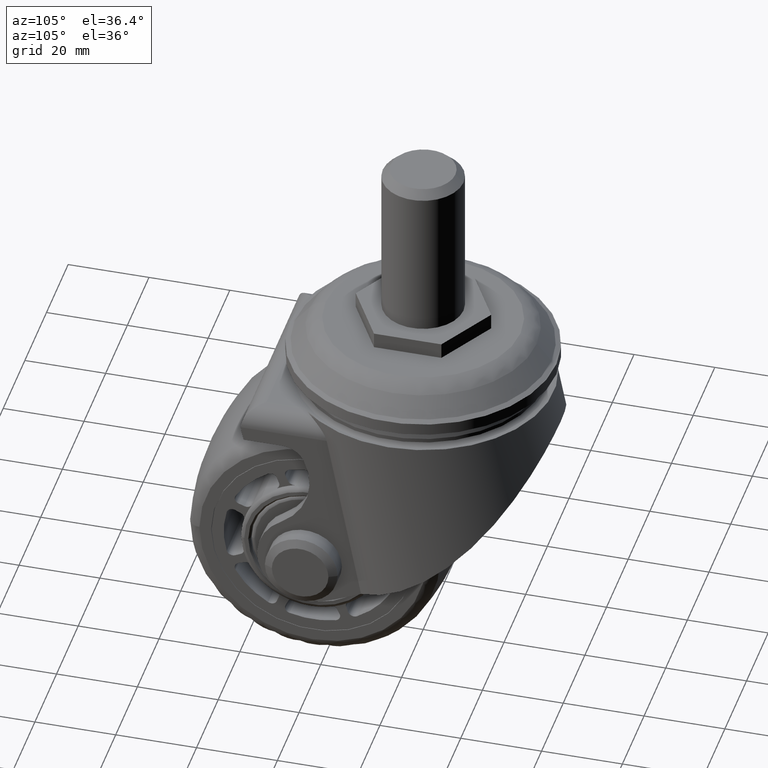
[diagram: clean part render]
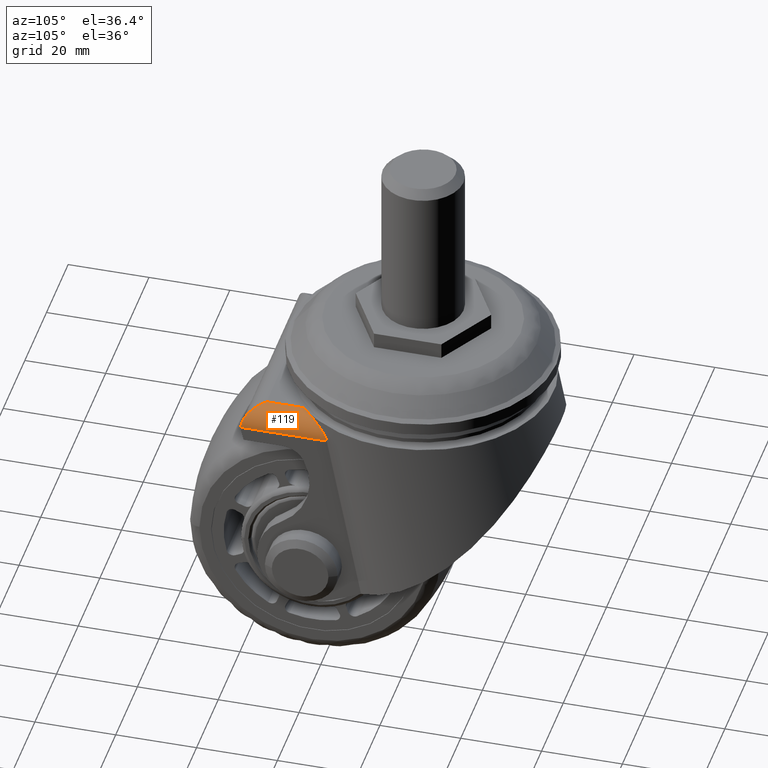
[diagram: same view with one face highlighted and labeled with its STEP entity id]
A machine part, auxiliary view. The second image highlights one B-rep face of the part: STEP entity #119.
In plain terms, the highlighted cylindrical surface (edge-blend (fillet) strip) has radius 5 mm, axis along (0, -1, 0).
Its self-contained STEP definition (entity closure, byte-faithful):
#119=ADVANCED_FACE('',(#394),#393,.T.);
#393=CYLINDRICAL_SURFACE('',#2494,5.00000000000E+00);
#394=FACE_OUTER_BOUND('',#2495,.T.);
#2491=CARTESIAN_POINT('',(2.15000000000E+01,-2.10000000000E+01,4.20000000000E+01));
#2492=DIRECTION('',(-0.00000000000E+00,-0.00000000000E+00,1.00000000000E+00));
#2493=DIRECTION('',(1.00000000000E+00,-0.00000000000E+00,-0.00000000000E+00));
#2494=AXIS2_PLACEMENT_3D('',#2491,#2492,#2493);
#2495=EDGE_LOOP('',(#4289,#4290,#4291,#4292));
#4289=ORIENTED_EDGE('',*,*,#5357,.F.);
#4290=ORIENTED_EDGE('',*,*,#5361,.T.);
#4291=ORIENTED_EDGE('',*,*,#5362,.T.);
#4292=ORIENTED_EDGE('',*,*,#5363,.T.);
#5357=EDGE_CURVE('',#6096,#6103,#6104,.T.);
#5361=EDGE_CURVE('',#6096,#6130,#6131,.T.);
#5362=EDGE_CURVE('',#6130,#6137,#6138,.T.);
#5363=EDGE_CURVE('',#6137,#6103,#6144,.T.);
#6096=VERTEX_POINT('',#9774);
#6103=VERTEX_POINT('',#9778);
#6104=LINE('',#9779,#9780);
#6130=VERTEX_POINT('',#9801);
#6131=(BOUNDED_CURVE() B_SPLINE_CURVE(2,(#9802,#9803,#9804),.UNSPECIFIED.,.F.,.F.) B_SPLINE_CURVE_WITH_KNOTS((3,3),(1.57079632679E+00,3.14159265359E+00),.UNSPECIFIED.) CURVE() GEOMETRIC_REPRESENTATION_ITEM() RATIONAL_B_SPLINE_CURVE((1.00000000000E+00,7.07106781187E-01,1.00000000000E+00)) REPRESENTATION_ITEM('') );
#6137=VERTEX_POINT('',#9805);
#6138=LINE('',#9806,#9807);
#6144=(BOUNDED_CURVE() B_SPLINE_CURVE(3,(#9809,#9810,#9811,#9812,#9813,#9814,#9815,#9816,#9817,#9818,#9819,#9820,#9821,#9822,#9823,#9824,#9825,#9826),.UNSPECIFIED.,.F.,.F.) B_SPLINE_CURVE_WITH_KNOTS((4,2,2,2,2,2,2,2,4),(0.00000000000E+00,6.64784937408E-04,1.32956987482E-03,2.65913974963E-03,3.98870962445E-03,5.31827949927E-03,6.64784937408E-03,7.97741924890E-03,1.06365589985E-02),.UNSPECIFIED.) CURVE() GEOMETRIC_REPRESENTATION_ITEM() RATIONAL_B_SPLINE_CURVE((1.00000000000E+00,1.00000000000E+00,1.00000000000E+00,1.00000000000E+00,1.00000000000E+00,1.00000000000E+00,1.00000000000E+00,1.00000000000E+00,1.00000000000E+00,1.00000000000E+00,1.00000000000E+00,1.00000000000E+00,1.00000000000E+00,1.00000000000E+00,1.00000000000E+00,1.00000000000E+00,1.00000000000E+00,1.00000000000E+00)) REPRESENTATION_ITEM('') );
#9774=CARTESIAN_POINT('',(2.15000000000E+01,-1.60000000000E+01,3.30000000000E+01));
#9778=CARTESIAN_POINT('',(2.15000000000E+01,-1.60000000000E+01,2.37458203658E+01));
#9779=CARTESIAN_POINT('',(2.15000000000E+01,-1.60000000000E+01,3.30000000000E+01));
#9780=VECTOR('',#9781,9.25417963419E+00);
#9781=DIRECTION('',(0.00000000000E+00,0.00000000000E+00,-1.00000000000E+00));
#9801=CARTESIAN_POINT('',(2.65000000000E+01,-2.10000000000E+01,3.80000000000E+01));
#9802=CARTESIAN_POINT('',(2.15000000000E+01,-1.60000000000E+01,3.30000000000E+01));
#9803=CARTESIAN_POINT('',(2.65000000000E+01,-1.60000000000E+01,3.80000000000E+01));
#9804=CARTESIAN_POINT('',(2.65000000000E+01,-2.10000000000E+01,3.80000000000E+01));
#9805=CARTESIAN_POINT('',(2.65000000000E+01,-2.10000000000E+01,1.67706071235E+01));
#9806=CARTESIAN_POINT('',(2.65000000000E+01,-2.10000000000E+01,3.80000000000E+01));
#9807=VECTOR('',#9808,2.12293928765E+01);
#9808=DIRECTION('',(0.00000000000E+00,0.00000000000E+00,-1.00000000000E+00));
#9809=CARTESIAN_POINT('',(2.65000000000E+01,-2.10000000000E+01,1.67706071235E+01));
#9810=CARTESIAN_POINT('',(2.65000000000E+01,-2.07787142974E+01,1.68136207068E+01));
#9811=CARTESIAN_POINT('',(2.64854562190E+01,-2.05665219001E+01,1.68774562275E+01));
#9812=CARTESIAN_POINT('',(2.64327052677E+01,-2.01567350852E+01,1.70384592280E+01));
#9813=CARTESIAN_POINT('',(2.63939746845E+01,-1.99574921288E+01,1.71367255991E+01));
#9814=CARTESIAN_POINT('',(2.62503569342E+01,-1.93920968648E+01,1.74650357899E+01));
#9815=CARTESIAN_POINT('',(2.61202734051E+01,-1.90579912590E+01,1.77252001218E+01));
#9816=CARTESIAN_POINT('',(2.58107957301E+01,-1.84435641096E+01,1.82943274241E+01));
#9817=CARTESIAN_POINT('',(2.56343794481E+01,-1.81707576935E+01,1.85974549716E+01));
#9818=CARTESIAN_POINT('',(2.52498219069E+01,-1.76778709965E+01,1.92198276680E+01));
#9819=CARTESIAN_POINT('',(2.50408642252E+01,-1.74570089635E+01,1.95404783366E+01));
#9820=CARTESIAN_POINT('',(2.45905074122E+01,-1.70580120648E+01,2.01947125048E+01));
#9821=CARTESIAN_POINT('',(2.43508614213E+01,-1.68819055546E+01,2.05255643071E+01));
#9822=CARTESIAN_POINT('',(2.38495671307E+01,-1.65766927528E+01,2.11820528941E+01));
#9823=CARTESIAN_POINT('',(2.35868565751E+01,-1.64466976919E+01,2.15092604608E+01));
#9824=CARTESIAN_POINT('',(2.27595531120E+01,-1.61252020498E+01,2.24856029301E+01));
#9825=CARTESIAN_POINT('',(2.21502232311E+01,-1.60000000000E+01,2.31348508850E+01));
#9826=CARTESIAN_POINT('',(2.15000000000E+01,-1.60000000000E+01,2.37458203658E+01));